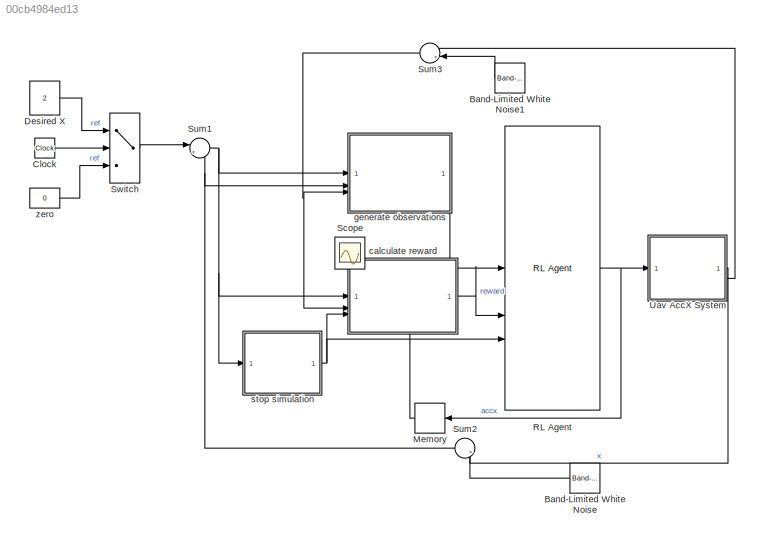
MODEL slx_00cb4984ed13
KIND model
CONFIG AbsTol = auto
CONFIG EnableMultiTasking = on
CONFIG FixedStep = Ts
CONFIG MaxStep = auto
CONFIG MinStep = auto
CONFIG RelTol = 1e-3
CONFIG SampleTimeConstraint = Unconstrained
CONFIG SolverName = ode45
CONFIG StartTime = 0.0
CONFIG StopTime = 200.0
BLOCK [Reference] Band-Limited White Noise  REF=simulink/Sources/Band-Limited
White Noise
  NameLocation = top
  SourceBlock = simulink/Sources/Band-Limited\nWhite Noise
  SourceType = Band-Limited White Noise.
BLOCK [Reference] Band-Limited White Noise1  REF=simulink/Sources/Band-Limited
White Noise
  NameLocation = top
  SourceBlock = simulink/Sources/Band-Limited\nWhite Noise
  SourceType = Band-Limited White Noise.
BLOCK [Clock] Clock
BLOCK [Constant] Desired X
  Value = 2
BLOCK [Memory] Memory
  NameLocation = top
BLOCK [Reference] RL Agent  REF=rllib/RL Agent
  SourceBlock = rllib/RL Agent
  SourceType = RL Agent
BLOCK [Scope] Scope
  Floating = off
  IOType = viewer
  NumInputPorts = 1
  ScopeSpecificationString = Simulink.scopes.TimeScopeBlockCfg('CurrentConfiguration', extmgr.ConfigurationSet(extmgr.Configuration('Core','General UI',true),extmgr.Configuration('Core','Source UI',true),extmgr.Configuration('Sources','WiredSimulink',true),extmgr.Configuration('Visuals','Time Domain',true,'SerializedDisplays',{struct('MinYLimReal','-14.65484','MaxYLimReal','3.85054','YLabelReal','','MinYLimMag','0.00000','Max...<+2676ch>
BLOCK [Sum] Sum1
  Inputs = |+-
  SaturateOnIntegerOverflow = on
BLOCK [Sum] Sum2
  Inputs = |++
  NameLocation = top
  SaturateOnIntegerOverflow = on
BLOCK [Sum] Sum3
  Inputs = |++
  NameLocation = top
  SaturateOnIntegerOverflow = on
BLOCK [Switch] Switch
  Criteria = u2 > Threshold
  InputSameDT = off
  SaturateOnIntegerOverflow = off
  Threshold = 3
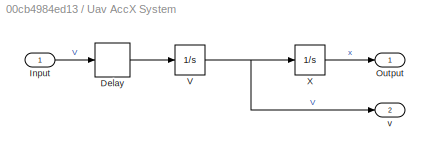
BLOCK [SubSystem] Uav AccX System
BLOCK [Delay] Uav AccX System/Delay
  DelayLength = 1
  InitialCondition = 0
  InputPortMap = u0
BLOCK [Inport] Uav AccX System/Input
BLOCK [Outport] Uav AccX System/Output
  VectorParamsAs1DForOutWhenUnconnected = off
BLOCK [Integrator] Uav AccX System/V
  LimitOutput = on
  LowerSaturationLimit = -100
  UpperSaturationLimit = 100
BLOCK [Integrator] Uav AccX System/X
  LimitOutput = on
  LowerSaturationLimit = -100
  UpperSaturationLimit = 100
BLOCK [Outport] Uav AccX System/v
  Port = 2
  VectorParamsAs1DForOutWhenUnconnected = off
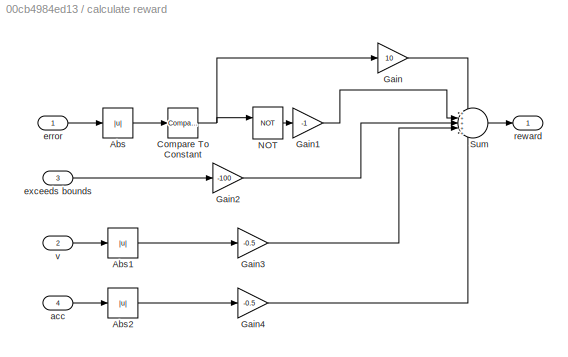
BLOCK [SubSystem] calculate reward
  PortSchema = {"entries":[{"content":{"sides":[{"content":{"connectorIds":["In1","In2","In3"]},"type":"ConnectorPlacement.EquallySpacedRectSide","uuid":"a6831b4c-c5e4-4b81-8e40-7fc4b7dad633"},{"content":{"connectorIds":["Out1"],"side":"RIGHT"},"type":"ConnectorPlacement.EquallySpacedRectSide","uuid":"8e922aec-ef45-4070-9445-bf1f36bf8a17"},{"content":{"connectorIds":[],"side":"TOP"},"type":"ConnectorPlacement.Eq...<+401ch>
BLOCK [Abs] calculate reward/Abs
  SaturateOnIntegerOverflow = off
BLOCK [Abs] calculate reward/Abs1
  SaturateOnIntegerOverflow = off
  ZeroCross = off
BLOCK [Abs] calculate reward/Abs2
  SaturateOnIntegerOverflow = off
  ZeroCross = off
BLOCK [Reference] calculate reward/Compare To Constant  REF=simulink/Logic and Bit
Operations/Compare
To Constant
  SourceBlock = simulink/Logic and Bit\nOperations/Compare\nTo Constant
  SourceType = Compare To Constant
BLOCK [Gain] calculate reward/Gain
  Gain = 10
BLOCK [Gain] calculate reward/Gain1
  Gain = -1
BLOCK [Gain] calculate reward/Gain2
  Gain = -100
BLOCK [Gain] calculate reward/Gain3
  Gain = -0.5
BLOCK [Gain] calculate reward/Gain4
  Gain = -0.5
BLOCK [Logic] calculate reward/NOT
  AllPortsSameDT = off
  IconShape = distinctive
  Operator = NOT
  OutDataTypeStr = boolean
BLOCK [Sum] calculate reward/Sum
  Inputs = +++++
  OutDataTypeStr = double
BLOCK [Inport] calculate reward/acc
  Port = 4
BLOCK [Inport] calculate reward/error
BLOCK [Inport] calculate reward/exceeds bounds
  Port = 3
BLOCK [Outport] calculate reward/reward
  VectorParamsAs1DForOutWhenUnconnected = off
BLOCK [Inport] calculate reward/v
  Port = 2
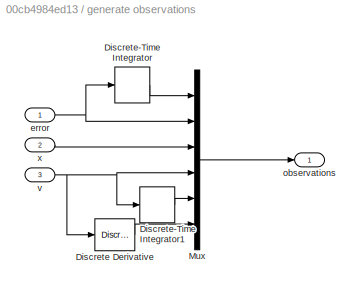
BLOCK [SubSystem] generate observations
BLOCK [Reference] generate observations/Discrete Derivative  REF=simulink/Discrete/Discrete Derivative
  SourceBlock = simulink/Discrete/Discrete Derivative
  SourceType = Discrete Derivative
BLOCK [DiscreteIntegrator] generate observations/Discrete-Time Integrator
  ICPrevOutput = DiscIntNeverNeededParam
  ICPrevScaledInput = DiscIntNeverNeededParam
  InitialConditionSetting = Auto
  SampleTime = Ts
BLOCK [DiscreteIntegrator] generate observations/Discrete-Time Integrator1
  ICPrevOutput = DiscIntNeverNeededParam
  ICPrevScaledInput = DiscIntNeverNeededParam
  InitialConditionSetting = Auto
  SampleTime = Ts
  gainval = 0.1
BLOCK [Mux] generate observations/Mux
  DisplayOption = bar
  Inputs = 6
BLOCK [Inport] generate observations/error
BLOCK [Outport] generate observations/observations
  VectorParamsAs1DForOutWhenUnconnected = off
BLOCK [Inport] generate observations/v
  Port = 3
BLOCK [Inport] generate observations/x
  Port = 2
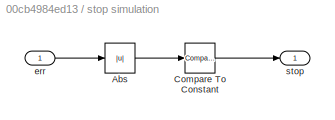
BLOCK [SubSystem] stop simulation
BLOCK [Abs] stop simulation/Abs
  SaturateOnIntegerOverflow = off
BLOCK [Reference] stop simulation/Compare To Constant  REF=simulink/Logic and Bit
Operations/Compare
To Constant
  SourceBlock = simulink/Logic and Bit\nOperations/Compare\nTo Constant
  SourceType = Compare To Constant
BLOCK [Inport] stop simulation/err
BLOCK [Outport] stop simulation/stop
  VectorParamsAs1DForOutWhenUnconnected = off
BLOCK [Constant] zero
  Value = 0
LINE Band-Limited White Noise1:1 -> Sum3:2
LINE Band-Limited White Noise:1 -> Sum2:2
LINE Clock:1 -> Switch:2
LINE Desired X:1 -> Switch:1
LINE Memory:1 -> calculate reward:4
NET RL Agent:1 -> Memory:1, Uav AccX System:1
NET Sum1:1 -> calculate reward:1, generate observations:1, stop simulation:1
NET Sum2:1 -> Sum1:2, generate observations:2
NET Sum3:1 -> calculate reward:2, generate observations:3
LINE Switch:1 -> Sum1:1
LINE Uav AccX System/Delay:1 -> Uav AccX System/V:1
LINE Uav AccX System/Input:1 -> Uav AccX System/Delay:1
NET Uav AccX System/V:1 -> Uav AccX System/X:1, Uav AccX System/v:1
LINE Uav AccX System/X:1 -> Uav AccX System/Output:1
LINE Uav AccX System:1 -> Sum2:1
LINE Uav AccX System:2 -> Sum3:1
LINE calculate reward/Abs1:1 -> calculate reward/Gain3:1
LINE calculate reward/Abs2:1 -> calculate reward/Gain4:1
LINE calculate reward/Abs:1 -> calculate reward/Compare To Constant:1
NET calculate reward/Compare To Constant:1 -> calculate reward/Gain:1, calculate reward/NOT:1
LINE calculate reward/Gain1:1 -> calculate reward/Sum:2
LINE calculate reward/Gain2:1 -> calculate reward/Sum:3
LINE calculate reward/Gain3:1 -> calculate reward/Sum:4
LINE calculate reward/Gain4:1 -> calculate reward/Sum:5
LINE calculate reward/Gain:1 -> calculate reward/Sum:1
LINE calculate reward/NOT:1 -> calculate reward/Gain1:1
LINE calculate reward/Sum:1 -> calculate reward/reward:1
LINE calculate reward/acc:1 -> calculate reward/Abs2:1
LINE calculate reward/error:1 -> calculate reward/Abs:1
LINE calculate reward/exceeds bounds:1 -> calculate reward/Gain2:1
LINE calculate reward/v:1 -> calculate reward/Abs1:1
LINE calculate reward:1 -> RL Agent:2
LINE generate observations/Discrete Derivative:1 -> generate observations/Mux:6
LINE generate observations/Discrete-Time Integrator1:1 -> generate observations/Mux:5
LINE generate observations/Discrete-Time Integrator:1 -> generate observations/Mux:1
LINE generate observations/Mux:1 -> generate observations/observations:1
NET generate observations/error:1 -> generate observations/Discrete-Time Integrator:1, generate observations/Mux:2
NET generate observations/v:1 -> generate observations/Discrete Derivative:1, generate observations/Discrete-Time Integrator1:1, generate observations/Mux:4
LINE generate observations/x:1 -> generate observations/Mux:3
LINE generate observations:1 -> RL Agent:1
LINE stop simulation/Abs:1 -> stop simulation/Compare To Constant:1
LINE stop simulation/Compare To Constant:1 -> stop simulation/stop:1
LINE stop simulation/err:1 -> stop simulation/Abs:1
NET stop simulation:1 -> RL Agent:3, calculate reward:3
LINE zero:1 -> Switch:3
note: NET lines group one-source signal fan-out (src -> all destinations, sorted); 1:1 wires keep LINE
